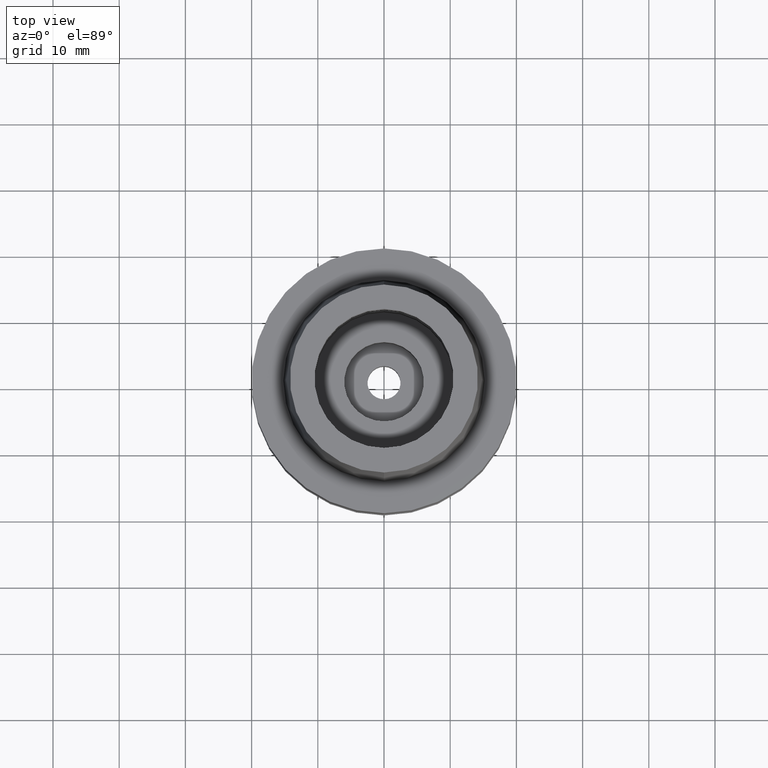
[diagram: clean part render]
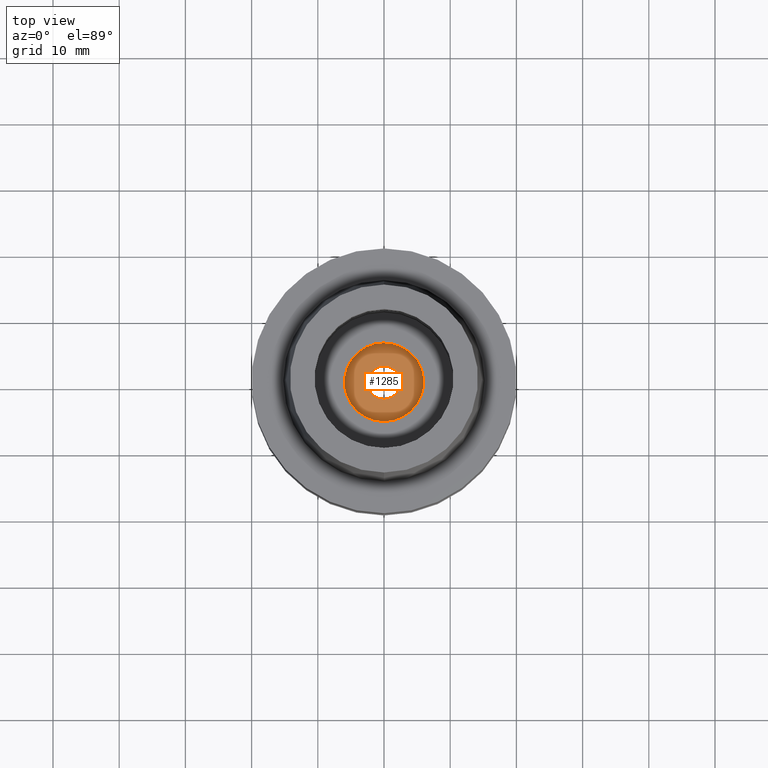
[diagram: same view with one face highlighted and labeled with its STEP entity id]
A machine part, top view. The second image highlights one B-rep face of the part: STEP entity #1285.
In plain terms, the highlighted planar face has unit normal (0, 0, 1).
Its self-contained STEP definition (entity closure, byte-faithful):
#476=CARTESIAN_POINT('',(0.E0,0.E0,-1.595E1));
#477=DIRECTION('',(0.E0,0.E0,-1.E0));
#478=DIRECTION('',(0.E0,-1.E0,0.E0));
#479=AXIS2_PLACEMENT_3D('',#476,#477,#478);
#484=CARTESIAN_POINT('',(0.E0,0.E0,-1.595E1));
#485=DIRECTION('',(0.E0,0.E0,-1.E0));
#486=DIRECTION('',(0.E0,1.E0,0.E0));
#487=AXIS2_PLACEMENT_3D('',#484,#485,#486);
#492=CARTESIAN_POINT('',(0.E0,0.E0,-1.595E1));
#493=DIRECTION('',(0.E0,0.E0,1.E0));
#494=DIRECTION('',(0.E0,-1.E0,0.E0));
#495=AXIS2_PLACEMENT_3D('',#492,#493,#494);
#500=CARTESIAN_POINT('',(0.E0,0.E0,-1.595E1));
#501=DIRECTION('',(0.E0,0.E0,1.E0));
#502=DIRECTION('',(0.E0,1.E0,0.E0));
#503=AXIS2_PLACEMENT_3D('',#500,#501,#502);
#796=CARTESIAN_POINT('',(0.E0,2.5E0,-1.595E1));
#797=VERTEX_POINT('',#796);
#798=CARTESIAN_POINT('',(0.E0,-2.5E0,-1.595E1));
#799=VERTEX_POINT('',#798);
#800=CARTESIAN_POINT('',(0.E0,-6.E0,-1.595E1));
#801=CARTESIAN_POINT('',(0.E0,6.E0,-1.595E1));
#802=VERTEX_POINT('',#800);
#803=VERTEX_POINT('',#801);
#1270=CARTESIAN_POINT('',(0.E0,0.E0,-1.595E1));
#1271=DIRECTION('',(0.E0,0.E0,1.E0));
#1272=DIRECTION('',(0.E0,1.E0,0.E0));
#1273=AXIS2_PLACEMENT_3D('',#1270,#1271,#1272);
#1274=PLANE('',#1273);
#1276=ORIENTED_EDGE('',*,*,#1275,.T.);
#1278=ORIENTED_EDGE('',*,*,#1277,.T.);
#1279=EDGE_LOOP('',(#1276,#1278));
#1280=FACE_OUTER_BOUND('',#1279,.F.);
#1281=ORIENTED_EDGE('',*,*,#1263,.T.);
#1282=ORIENTED_EDGE('',*,*,#1252,.T.);
#1283=EDGE_LOOP('',(#1281,#1282));
#1284=FACE_BOUND('',#1283,.F.);
#480=CIRCLE('',#479,6.E0);
#488=CIRCLE('',#487,6.E0);
#496=CIRCLE('',#495,2.5E0);
#504=CIRCLE('',#503,2.5E0);
#1252=EDGE_CURVE('',#797,#799,#504,.T.);
#1263=EDGE_CURVE('',#799,#797,#496,.T.);
#1275=EDGE_CURVE('',#802,#803,#480,.T.);
#1277=EDGE_CURVE('',#803,#802,#488,.T.);
#1285=ADVANCED_FACE('',(#1280,#1284),#1274,.T.);